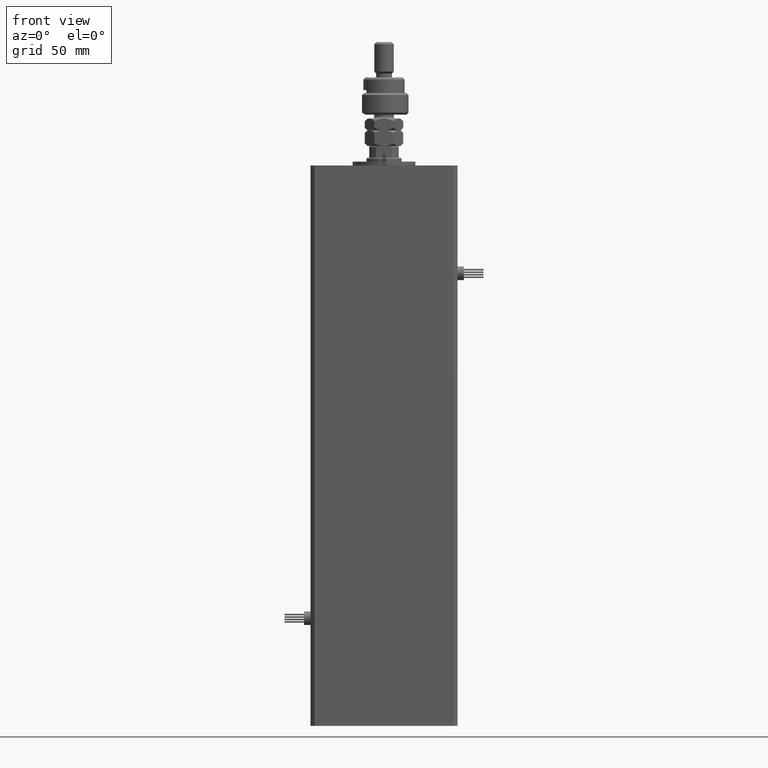
[diagram: clean part render]
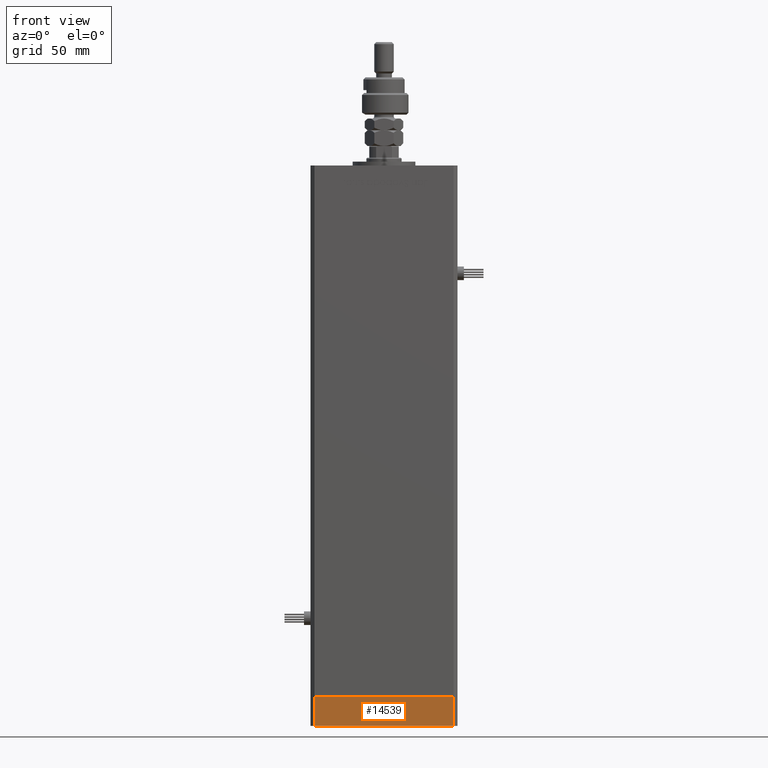
[diagram: same view with one face highlighted and labeled with its STEP entity id]
A machine part, front view. The second image highlights one B-rep face of the part: STEP entity #14539.
In plain terms, the highlighted planar face has unit normal (-0, -1, -0).
Its self-contained STEP definition (entity closure, byte-faithful):
#2410 = ORIENTED_EDGE ( 'NONE', *, *, #56492, .T. ) ;
#2820 = VECTOR ( 'NONE', #43293, 1000.000000000000000 ) ;
#3220 = LINE ( 'NONE', #12320, #9089 ) ;
#3346 = DIRECTION ( 'NONE',  ( 9.773090005503140331E-17, -1.000000000000000000, 0.000000000000000000 ) ) ;
#3531 = VECTOR ( 'NONE', #38999, 1000.000000000000000 ) ;
#3633 = CARTESIAN_POINT ( 'NONE',  ( -35.49999999999998579, -32.50000000000001421, -15.00000000000000000 ) ) ;
#3885 = VERTEX_POINT ( 'NONE', #53458 ) ;
#4446 = EDGE_CURVE ( 'NONE', #3885, #30638, #7585, .T. ) ;
#4585 = VERTEX_POINT ( 'NONE', #13997 ) ;
#5615 = VERTEX_POINT ( 'NONE', #28705 ) ;
#7176 = FACE_OUTER_BOUND ( 'NONE', #22380, .T. ) ;
#7585 = LINE ( 'NONE', #29266, #24834 ) ;
#7922 = EDGE_CURVE ( 'NONE', #4585, #5615, #33718, .T. ) ;
#9058 = DIRECTION ( 'NONE',  ( 1.000000000000000000, 9.773090005503140331E-17, 0.000000000000000000 ) ) ;
#9089 = VECTOR ( 'NONE', #9058, 1000.000000000000000 ) ;
#12215 = CARTESIAN_POINT ( 'NONE',  ( -35.49999999999998579, -32.50000000000001421, 0.000000000000000000 ) ) ;
#12320 = CARTESIAN_POINT ( 'NONE',  ( -35.49999999999998579, -32.50000000000001421, -15.00000000000000000 ) ) ;
#13997 = CARTESIAN_POINT ( 'NONE',  ( -35.49999999999998579, -32.50000000000001421, -15.00000000000000000 ) ) ;
#14539 = ADVANCED_FACE ( 'NONE', ( #7176 ), #43811, .T. ) ;
#16222 = CARTESIAN_POINT ( 'NONE',  ( 35.50000000000000711, -32.50000000000000711, 0.000000000000000000 ) ) ;
#19385 = EDGE_CURVE ( 'NONE', #5615, #30638, #30373, .T. ) ;
#22380 = EDGE_LOOP ( 'NONE', ( #53747, #54057, #2410, #24185 ) ) ;
#24185 = ORIENTED_EDGE ( 'NONE', *, *, #4446, .T. ) ;
#24834 = VECTOR ( 'NONE', #25458, 1000.000000000000000 ) ;
#25458 = DIRECTION ( 'NONE',  ( 0.000000000000000000, 0.000000000000000000, 1.000000000000000000 ) ) ;
#28705 = CARTESIAN_POINT ( 'NONE',  ( -35.49999999999998579, -32.50000000000001421, 0.000000000000000000 ) ) ;
#29266 = CARTESIAN_POINT ( 'NONE',  ( 35.50000000000000711, -32.50000000000000711, -15.00000000000000000 ) ) ;
#30373 = LINE ( 'NONE', #12215, #2820 ) ;
#30638 = VERTEX_POINT ( 'NONE', #16222 ) ;
#31657 = AXIS2_PLACEMENT_3D ( 'NONE', #3633, #3346, #43515 ) ;
#33718 = LINE ( 'NONE', #38703, #3531 ) ;
#38703 = CARTESIAN_POINT ( 'NONE',  ( -35.49999999999998579, -32.50000000000001421, -15.00000000000000000 ) ) ;
#38999 = DIRECTION ( 'NONE',  ( 0.000000000000000000, 0.000000000000000000, 1.000000000000000000 ) ) ;
#43293 = DIRECTION ( 'NONE',  ( 1.000000000000000000, 9.773090005503140331E-17, 0.000000000000000000 ) ) ;
#43515 = DIRECTION ( 'NONE',  ( 1.000000000000000000, 9.773090005503140331E-17, 0.000000000000000000 ) ) ;
#43811 = PLANE ( 'NONE',  #31657 ) ;
#53458 = CARTESIAN_POINT ( 'NONE',  ( 35.50000000000000711, -32.50000000000000711, -15.00000000000000000 ) ) ;
#53747 = ORIENTED_EDGE ( 'NONE', *, *, #19385, .F. ) ;
#54057 = ORIENTED_EDGE ( 'NONE', *, *, #7922, .F. ) ;
#56492 = EDGE_CURVE ( 'NONE', #4585, #3885, #3220, .T. ) ;